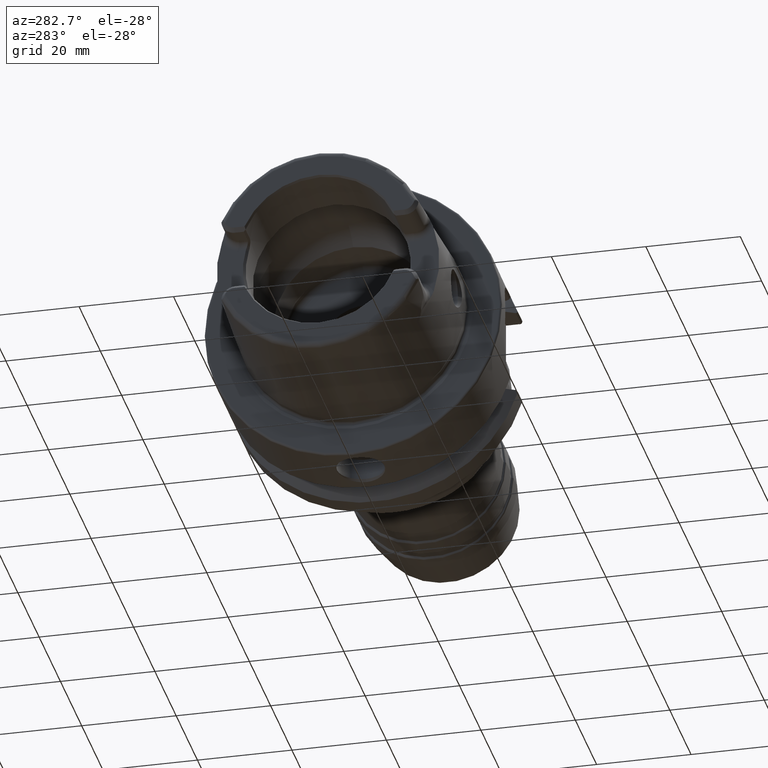
[diagram: clean part render]
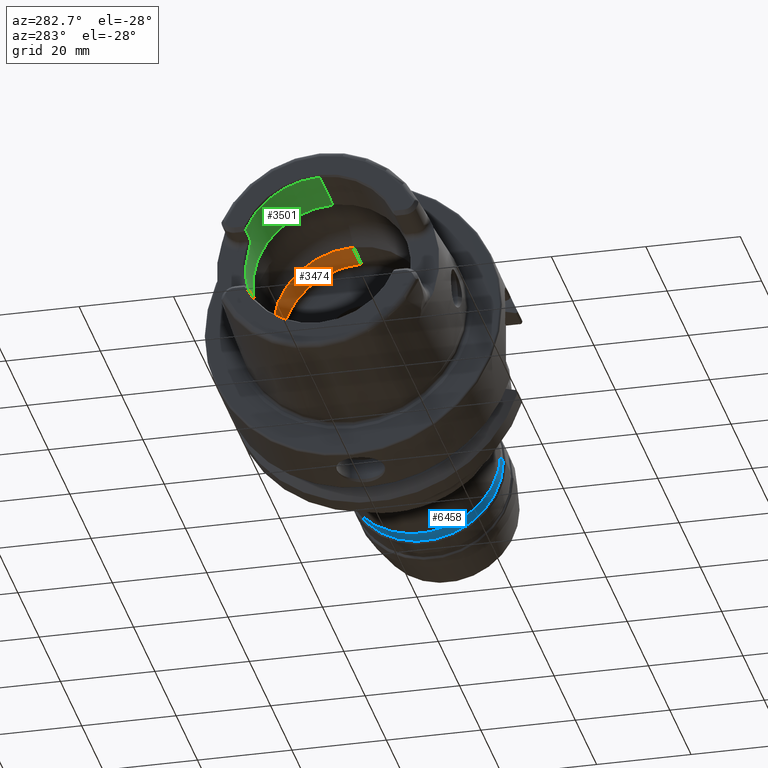
[diagram: same view with three faces highlighted in distinct colors, each labeled with its STEP entity id]
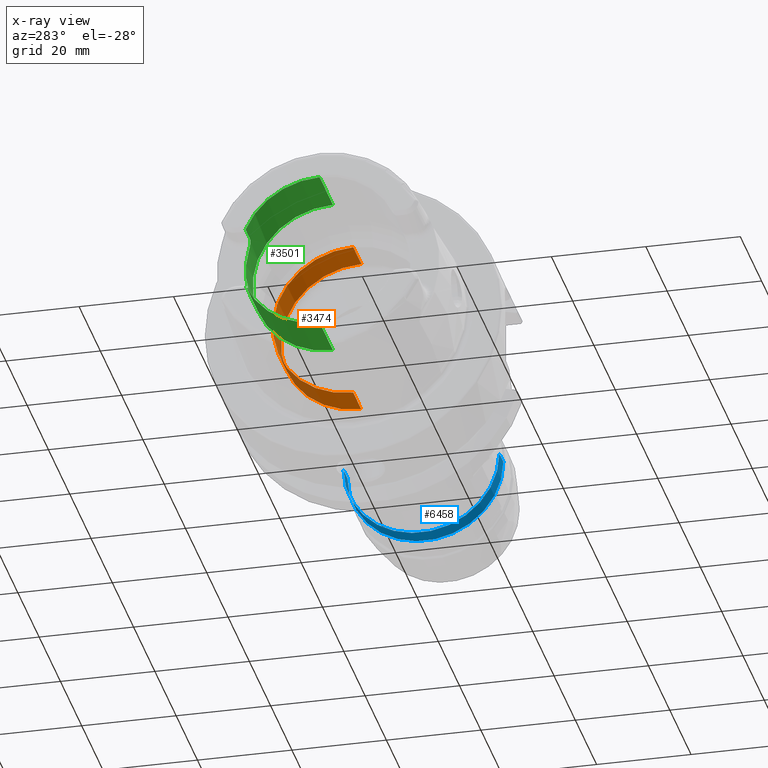
[diagram: x-ray of the same camera — body ghosted, the three highlighted faces saturated]
A machine part, auxiliary view with three faces highlighted in distinct colors.
The next image is the same camera in x-ray (body ghosted, the three faces saturated) — at least one of them is partly hidden behind the body in this view.
Their STEP definitions:

[orange] entity #3474 — the highlighted cylindrical surface (partial cylindrical patch) has radius 17 mm, axis along (1, 0, 0).
#123=CARTESIAN_POINT('',(9.100685570619E-2,0.E0,0.E0));
#124=DIRECTION('',(1.E0,0.E0,0.E0));
#125=DIRECTION('',(0.E0,0.E0,-1.E0));
#126=AXIS2_PLACEMENT_3D('',#123,#124,#125);
#128=CARTESIAN_POINT('',(7.670843802411E0,0.E0,0.E0));
#129=DIRECTION('',(1.E0,0.E0,0.E0));
#130=DIRECTION('',(0.E0,0.E0,-1.E0));
#131=AXIS2_PLACEMENT_3D('',#128,#129,#130);
#181=DIRECTION('',(-1.E0,0.E0,0.E0));
#182=VECTOR('',#181,7.579836946705E0);
#183=CARTESIAN_POINT('',(7.670843802411E0,0.E0,-1.7E1));
#184=LINE('',#183,#182);
#190=DIRECTION('',(-1.E0,0.E0,0.E0));
#191=VECTOR('',#190,7.579836946705E0);
#192=CARTESIAN_POINT('',(7.670843802411E0,0.E0,1.7E1));
#193=LINE('',#192,#191);
#2824=CARTESIAN_POINT('',(9.100685570619E-2,0.E0,-1.7E1));
#2825=CARTESIAN_POINT('',(9.100685570619E-2,0.E0,1.7E1));
#2826=VERTEX_POINT('',#2824);
#2827=VERTEX_POINT('',#2825);
#2832=CARTESIAN_POINT('',(7.670843802411E0,0.E0,-1.7E1));
#2833=VERTEX_POINT('',#2832);
#2834=CARTESIAN_POINT('',(7.670843802411E0,0.E0,1.7E1));
#2835=VERTEX_POINT('',#2834);
#3459=CARTESIAN_POINT('',(0.E0,0.E0,0.E0));
#3460=DIRECTION('',(1.E0,0.E0,0.E0));
#3461=DIRECTION('',(0.E0,0.E0,1.E0));
#3462=AXIS2_PLACEMENT_3D('',#3459,#3460,#3461);
#3463=CYLINDRICAL_SURFACE('',#3462,1.7E1);
#3465=ORIENTED_EDGE('',*,*,#3464,.T.);
#3467=ORIENTED_EDGE('',*,*,#3466,.T.);
#3469=ORIENTED_EDGE('',*,*,#3468,.F.);
#3471=ORIENTED_EDGE('',*,*,#3470,.F.);
#3472=EDGE_LOOP('',(#3465,#3467,#3469,#3471));
#3473=FACE_OUTER_BOUND('',#3472,.F.);
#3474=ADVANCED_FACE('',(#3473),#3463,.F.);
#127=CIRCLE('',#126,1.7E1);
#132=CIRCLE('',#131,1.7E1);
#3464=EDGE_CURVE('',#2833,#2826,#184,.T.);
#3466=EDGE_CURVE('',#2826,#2827,#127,.T.);
#3468=EDGE_CURVE('',#2835,#2827,#193,.T.);
#3470=EDGE_CURVE('',#2833,#2835,#132,.T.);

[blue] entity #6458 — the highlighted cylindrical surface (partial cylindrical patch) has radius 16.5 mm, axis along (1, 0, 0).
#2576=CARTESIAN_POINT('',(6.411731757470E1,0.E0,0.E0));
#2577=DIRECTION('',(-1.E0,0.E0,0.E0));
#2578=DIRECTION('',(0.E0,1.E0,0.E0));
#2579=AXIS2_PLACEMENT_3D('',#2576,#2577,#2578);
#2581=DIRECTION('',(1.E0,0.E0,2.273326258203E-12));
#2582=VECTOR('',#2581,3.765364850601E0);
#2583=CARTESIAN_POINT('',(6.411731757470E1,-1.65E1,-1.887702776473E-11));
#2584=LINE('',#2583,#2582);
#2585=CARTESIAN_POINT('',(6.788268242530E1,0.E0,0.E0));
#2586=DIRECTION('',(-1.E0,0.E0,0.E0));
#2587=DIRECTION('',(0.E0,1.E0,0.E0));
#2588=AXIS2_PLACEMENT_3D('',#2585,#2586,#2587);
#2590=DIRECTION('',(1.E0,0.E0,-2.273438670292E-12));
#2591=VECTOR('',#2590,3.765364850601E0);
#2592=CARTESIAN_POINT('',(6.411731757470E1,1.65E1,1.887622422549E-11));
#2593=LINE('',#2592,#2591);
#3267=CARTESIAN_POINT('',(6.411731757470E1,1.65E1,0.E0));
#3268=CARTESIAN_POINT('',(6.411731757470E1,-1.65E1,0.E0));
#3269=VERTEX_POINT('',#3267);
#3270=VERTEX_POINT('',#3268);
#3279=CARTESIAN_POINT('',(6.788268242530E1,1.65E1,0.E0));
#3280=CARTESIAN_POINT('',(6.788268242530E1,-1.65E1,0.E0));
#3281=VERTEX_POINT('',#3279);
#3282=VERTEX_POINT('',#3280);
#6444=CARTESIAN_POINT('',(0.E0,0.E0,0.E0));
#6445=DIRECTION('',(1.E0,0.E0,0.E0));
#6446=DIRECTION('',(0.E0,-1.E0,0.E0));
#6447=AXIS2_PLACEMENT_3D('',#6444,#6445,#6446);
#6448=CYLINDRICAL_SURFACE('',#6447,1.65E1);
#6450=ORIENTED_EDGE('',*,*,#6449,.T.);
#6452=ORIENTED_EDGE('',*,*,#6451,.T.);
#6453=ORIENTED_EDGE('',*,*,#6438,.F.);
#6455=ORIENTED_EDGE('',*,*,#6454,.F.);
#6456=EDGE_LOOP('',(#6450,#6452,#6453,#6455));
#6457=FACE_OUTER_BOUND('',#6456,.F.);
#6458=ADVANCED_FACE('',(#6457),#6448,.T.);
#2580=CIRCLE('',#2579,1.65E1);
#2589=CIRCLE('',#2588,1.65E1);
#6438=EDGE_CURVE('',#3281,#3282,#2589,.T.);
#6449=EDGE_CURVE('',#3269,#3270,#2580,.T.);
#6451=EDGE_CURVE('',#3270,#3282,#2584,.T.);
#6454=EDGE_CURVE('',#3269,#3281,#2593,.T.);

[green] entity #3501 — the highlighted cylindrical surface (partial cylindrical patch) has radius 17 mm, axis along (1, 0, 0).
#116=CARTESIAN_POINT('',(-3.150268444782E1,1.567796529890E1,-6.574332062824E0));
#133=CARTESIAN_POINT('',(-3.15E1,0.E0,0.E0));
#134=DIRECTION('',(1.E0,0.E0,0.E0));
#135=DIRECTION('',(0.E0,0.E0,-1.E0));
#136=AXIS2_PLACEMENT_3D('',#133,#134,#135);
#138=DIRECTION('',(-9.999997644930E-1,3.975065776342E-4,5.594661836317E-4));
#139=VECTOR('',#138,4.002685600278E0);
#140=CARTESIAN_POINT('',(-2.749999979020E1,1.567637420505E1,-6.576571430061E0));
#141=LINE('',#140,#139);
#142=CARTESIAN_POINT('',(-2.549999999985E1,1.635630435401E1,-4.633714262915E0));
#143=CARTESIAN_POINT('',(-2.549838678129E1,1.630679591542E1,-4.808471496404E0));
#144=CARTESIAN_POINT('',(-2.554706617009E1,1.620547611804E1,-5.145365924135E0));
#145=CARTESIAN_POINT('',(-2.575646791892E1,1.604187551557E1,-5.633516625761E0));
#146=CARTESIAN_POINT('',(-2.608994301115E1,1.589112114077E1,-6.043307406608E0));
#147=CARTESIAN_POINT('',(-2.651694122920E1,1.576949602124E1,-6.351877521573E0));
#148=CARTESIAN_POINT('',(-2.700694935001E1,1.569285056209E1,-6.537524487562E0));
#149=CARTESIAN_POINT('',(-2.733334790390E1,1.567596172536E1,-6.577554645409E0));
#150=CARTESIAN_POINT('',(-2.749999979020E1,1.567637420505E1,-6.576571430061E0));
#152=CARTESIAN_POINT('',(-2.55E1,0.E0,0.E0));
#153=DIRECTION('',(-1.E0,0.E0,0.E0));
#154=DIRECTION('',(0.E0,9.621355498715E-1,2.725714285714E-1));
#155=AXIS2_PLACEMENT_3D('',#152,#153,#154);
#157=CARTESIAN_POINT('',(-2.750000002529E1,1.567637420601E1,6.576571428495E0));
#158=CARTESIAN_POINT('',(-2.732899423486E1,1.567623645392E1,6.576899783988E0));
#159=CARTESIAN_POINT('',(-2.699669922513E1,1.569374375660E1,6.535401312727E0));
#160=CARTESIAN_POINT('',(-2.651169790697E1,1.577088635210E1,6.348413582852E0));
#161=CARTESIAN_POINT('',(-2.608727700171E1,1.589204482473E1,6.040895658698E0));
#162=CARTESIAN_POINT('',(-2.575332240302E1,1.604362861203E1,5.628585337181E0));
#163=CARTESIAN_POINT('',(-2.554597127048E1,1.620699796503E1,5.140492347600E0));
#164=CARTESIAN_POINT('',(-2.549839298421E1,1.630737547300E1,4.806425746706E0));
#165=CARTESIAN_POINT('',(-2.549999999971E1,1.635630434873E1,4.633714281671E0));
#167=DIRECTION('',(9.999997644933E-1,-3.975063864555E-4,5.594658857536E-4));
#168=VECTOR('',#167,4.002685365186E0);
#169=CARTESIAN_POINT('',(-3.150268444782E1,1.567796529901E1,6.574332062582E0));
#170=LINE('',#169,#168);
#171=CARTESIAN_POINT('',(-3.15E1,0.E0,0.E0));
#172=DIRECTION('',(1.E0,0.E0,0.E0));
#173=DIRECTION('',(0.E0,9.221396591734E-1,3.868571428571E-1));
#174=AXIS2_PLACEMENT_3D('',#171,#172,#173);
#176=CARTESIAN_POINT('',(-1.899602540378E1,0.E0,0.E0));
#177=DIRECTION('',(1.E0,0.E0,0.E0));
#178=DIRECTION('',(0.E0,0.E0,-1.E0));
#179=AXIS2_PLACEMENT_3D('',#176,#177,#178);
#204=DIRECTION('',(-1.E0,-5.054731977457E-9,2.844194017430E-11));
#205=VECTOR('',#204,1.250397459560E1);
#206=CARTESIAN_POINT('',(-1.899602540378E1,0.E0,-1.7E1));
#207=LINE('',#206,#205);
#213=DIRECTION('',(-1.E0,5.054731770482E-9,-2.843767827303E-11));
#214=VECTOR('',#213,1.250397459560E1);
#215=CARTESIAN_POINT('',(-1.899602540378E1,0.E0,1.7E1));
#216=LINE('',#215,#214);
#1315=CARTESIAN_POINT('',(-3.150268444782E1,1.567796529901E1,6.574332062582E0));
#2820=CARTESIAN_POINT('',(-1.899602540378E1,0.E0,-1.7E1));
#2821=CARTESIAN_POINT('',(-1.899602540378E1,0.E0,1.7E1));
#2822=VERTEX_POINT('',#2820);
#2823=VERTEX_POINT('',#2821);
#3025=VERTEX_POINT('',#142);
#3026=VERTEX_POINT('',#150);
#3029=CARTESIAN_POINT('',(-2.55E1,1.635630434782E1,4.633714285714E0));
#3030=VERTEX_POINT('',#3029);
#3033=VERTEX_POINT('',#157);
#3189=CARTESIAN_POINT('',(-3.15E1,0.E0,1.7E1));
#3190=VERTEX_POINT('',#3189);
#3191=VERTEX_POINT('',#1315);
#3194=VERTEX_POINT('',#116);
#3195=CARTESIAN_POINT('',(-3.15E1,0.E0,-1.7E1));
#3196=VERTEX_POINT('',#3195);
#3475=CARTESIAN_POINT('',(0.E0,0.E0,0.E0));
#3476=DIRECTION('',(1.E0,0.E0,0.E0));
#3477=DIRECTION('',(0.E0,0.E0,1.E0));
#3478=AXIS2_PLACEMENT_3D('',#3475,#3476,#3477);
#3479=CYLINDRICAL_SURFACE('',#3478,1.7E1);
#3480=ORIENTED_EDGE('',*,*,#3447,.T.);
#3482=ORIENTED_EDGE('',*,*,#3481,.F.);
#3484=ORIENTED_EDGE('',*,*,#3483,.F.);
#3486=ORIENTED_EDGE('',*,*,#3485,.F.);
#3488=ORIENTED_EDGE('',*,*,#3487,.F.);
#3490=ORIENTED_EDGE('',*,*,#3489,.F.);
#3492=ORIENTED_EDGE('',*,*,#3491,.T.);
#3494=ORIENTED_EDGE('',*,*,#3493,.F.);
#3496=ORIENTED_EDGE('',*,*,#3495,.F.);
#3498=ORIENTED_EDGE('',*,*,#3497,.T.);
#3499=EDGE_LOOP('',(#3480,#3482,#3484,#3486,#3488,#3490,#3492,#3494,#3496,
#3498));
#3500=FACE_OUTER_BOUND('',#3499,.F.);
#3501=ADVANCED_FACE('',(#3500),#3479,.F.);
#137=CIRCLE('',#136,1.7E1);
#151=B_SPLINE_CURVE_WITH_KNOTS('',3,(#142,#143,#144,#145,#146,#147,#148,#149,
#150),.UNSPECIFIED.,.F.,.F.,(4,1,1,1,1,1,4),(0.E0,1.666666666667E-1,
3.333333333333E-1,5.E-1,6.666666666667E-1,8.333333333333E-1,1.E0),
.UNSPECIFIED.);
#156=CIRCLE('',#155,1.7E1);
#166=B_SPLINE_CURVE_WITH_KNOTS('',3,(#157,#158,#159,#160,#161,#162,#163,#164,
#165),.UNSPECIFIED.,.F.,.F.,(4,1,1,1,1,1,4),(0.E0,1.666666666667E-1,
3.333333333333E-1,5.E-1,6.666666666667E-1,8.333333333333E-1,1.E0),
.UNSPECIFIED.);
#175=CIRCLE('',#174,1.7E1);
#180=CIRCLE('',#179,1.7E1);
#3447=EDGE_CURVE('',#3196,#3194,#137,.T.);
#3481=EDGE_CURVE('',#3026,#3194,#141,.T.);
#3483=EDGE_CURVE('',#3025,#3026,#151,.T.);
#3485=EDGE_CURVE('',#3030,#3025,#156,.T.);
#3487=EDGE_CURVE('',#3033,#3030,#166,.T.);
#3489=EDGE_CURVE('',#3191,#3033,#170,.T.);
#3491=EDGE_CURVE('',#3191,#3190,#175,.T.);
#3493=EDGE_CURVE('',#2823,#3190,#216,.T.);
#3495=EDGE_CURVE('',#2822,#2823,#180,.T.);
#3497=EDGE_CURVE('',#2822,#3196,#207,.T.);